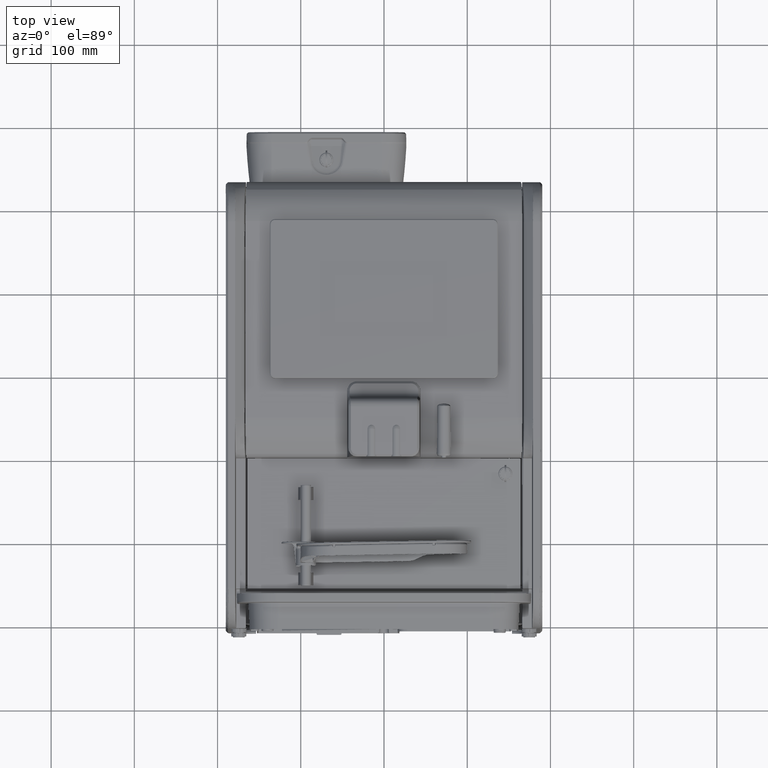
[diagram: clean part render]
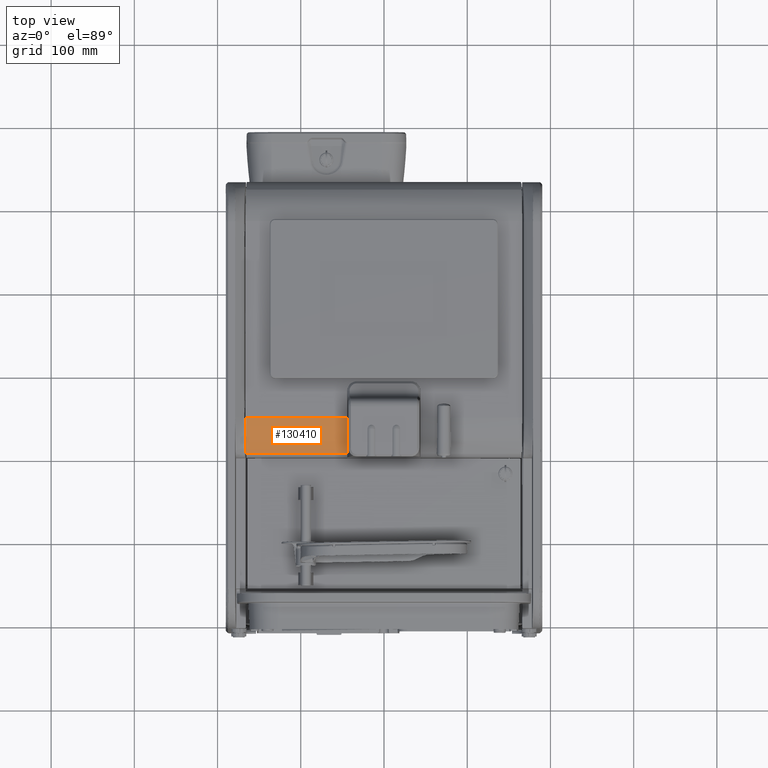
[diagram: same view with one face highlighted and labeled with its STEP entity id]
A machine part, top view. The second image highlights one B-rep face of the part: STEP entity #130410.
In plain terms, the highlighted cylindrical surface (partial cylindrical patch) has radius 66 mm, axis along (-1, 0, 0).
Its self-contained STEP definition (entity closure, byte-faithful):
#9030=CYLINDRICAL_SURFACE('',#140111,66.);
#18672=CIRCLE('',#140112,66.);
#21303=ELLIPSE('',#140110,66.0628772207791,66.);
#26179=FACE_OUTER_BOUND('',#32335,.T.);
#32335=EDGE_LOOP('',(#115152,#115153,#115154,#115155));
#41367=LINE('',#280828,#51226);
#41371=LINE('',#280863,#51230);
#51226=VECTOR('',#166037,10.);
#51230=VECTOR('',#166055,10.);
#64766=VERTEX_POINT('',#280825);
#64767=VERTEX_POINT('',#280827);
#64770=VERTEX_POINT('',#280856);
#64771=VERTEX_POINT('',#280861);
#84701=EDGE_CURVE('',#64767,#64766,#41367,.T.);
#84706=EDGE_CURVE('',#64767,#64770,#21303,.T.);
#84709=EDGE_CURVE('',#64766,#64771,#18672,.T.);
#84710=EDGE_CURVE('',#64770,#64771,#41371,.T.);
#115152=ORIENTED_EDGE('',*,*,#84709,.T.);
#115153=ORIENTED_EDGE('',*,*,#84710,.F.);
#115154=ORIENTED_EDGE('',*,*,#84706,.F.);
#115155=ORIENTED_EDGE('',*,*,#84701,.T.);
#130410=ADVANCED_FACE('',(#26179),#9030,.T.);
#140110=AXIS2_PLACEMENT_3D('',#280857,#166047,#166048);
#140111=AXIS2_PLACEMENT_3D('',#280860,#166051,#166052);
#140112=AXIS2_PLACEMENT_3D('',#280862,#166053,#166054);
#166037=DIRECTION('',(1.,-5.63726486357343E-10,-1.3759885292662E-14));
#166047=DIRECTION('center_axis',(-0.999048221581858,5.63191688462071E-10,
-0.0436193873653233));
#166048=DIRECTION('ref_axis',(-0.0436193873653233,2.45494412990989E-11,
0.999048221581858));
#166051=DIRECTION('center_axis',(-1.,5.63726486357343E-10,1.3759885292662E-14));
#166052=DIRECTION('ref_axis',(1.37598852701125E-14,-4.00007492723122E-14,
1.));
#166053=DIRECTION('center_axis',(-1.,5.63726068391028E-10,1.3759885292662E-14));
#166054=DIRECTION('ref_axis',(1.37598852701125E-14,-4.00007492723122E-14,
1.));
#166055=DIRECTION('',(1.,-5.63726486357343E-10,-1.3759885292662E-14));
#280825=CARTESIAN_POINT('',(-44.2000001481586,201.962961696335,189.408737864078));
#280827=CARTESIAN_POINT('',(-165.679064951144,201.962961764816,189.408737864079));
#280828=CARTESIAN_POINT('',(-0.150000148158709,201.962961671503,189.408737864077));
#280856=CARTESIAN_POINT('',(-166.37289241579,244.917756487905,205.300000000004));
#280857=CARTESIAN_POINT('Origin',(-163.491270183829,244.917756486283,139.300000000004));
#280860=CARTESIAN_POINT('Origin',(-0.150000123944643,244.917756394203,139.300000000001));
#280861=CARTESIAN_POINT('',(-44.2000001239437,244.917756419033,205.300000000002));
#280862=CARTESIAN_POINT('Origin',(-44.2000001239446,244.917756419035,139.300000000002));
#280863=CARTESIAN_POINT('',(-0.150000123943735,244.9177563942,205.300000000001));